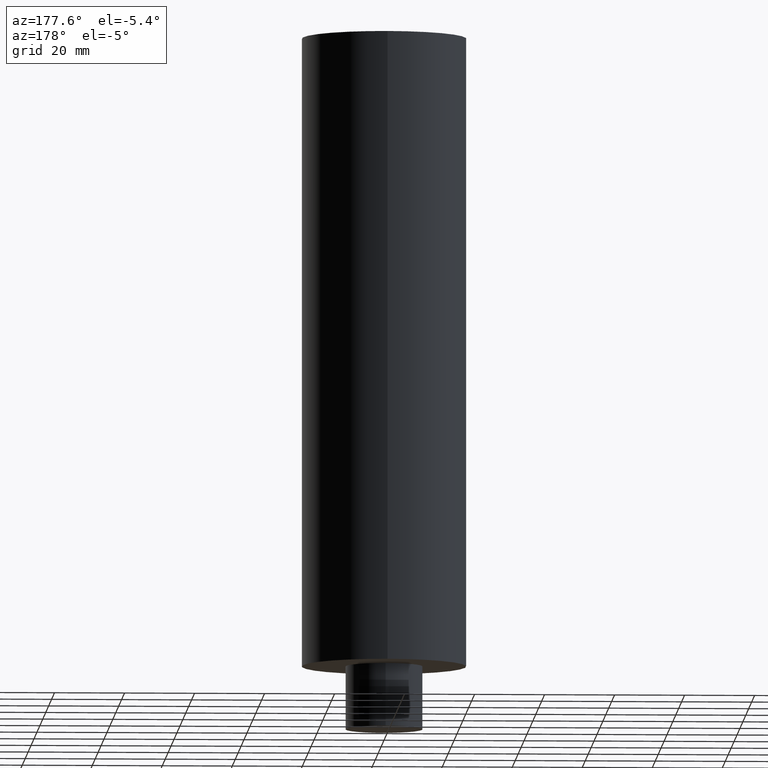
[diagram: clean part render]
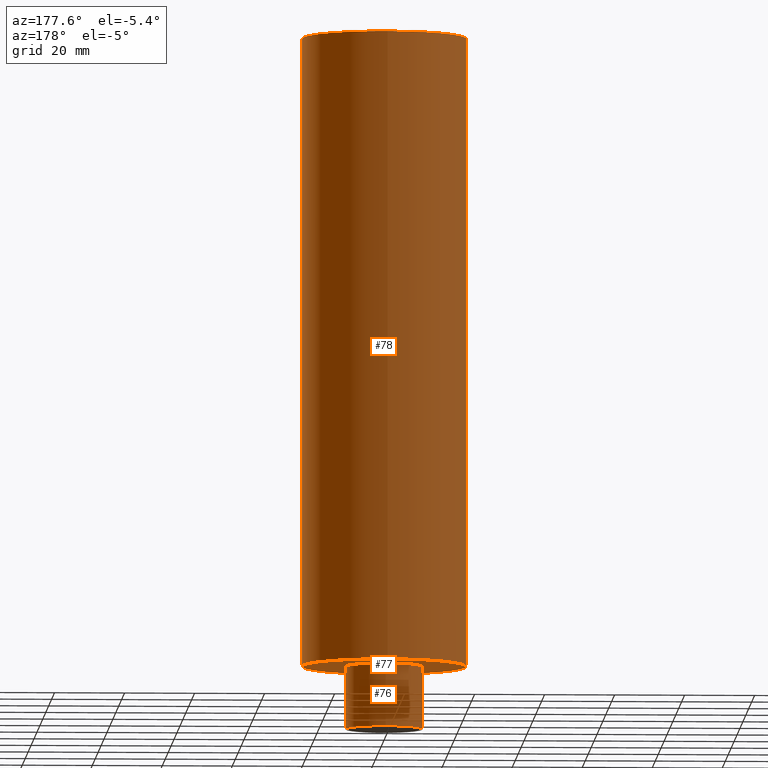
[diagram: same view with one multi-face feature highlighted, each face labeled with its STEP entity id]
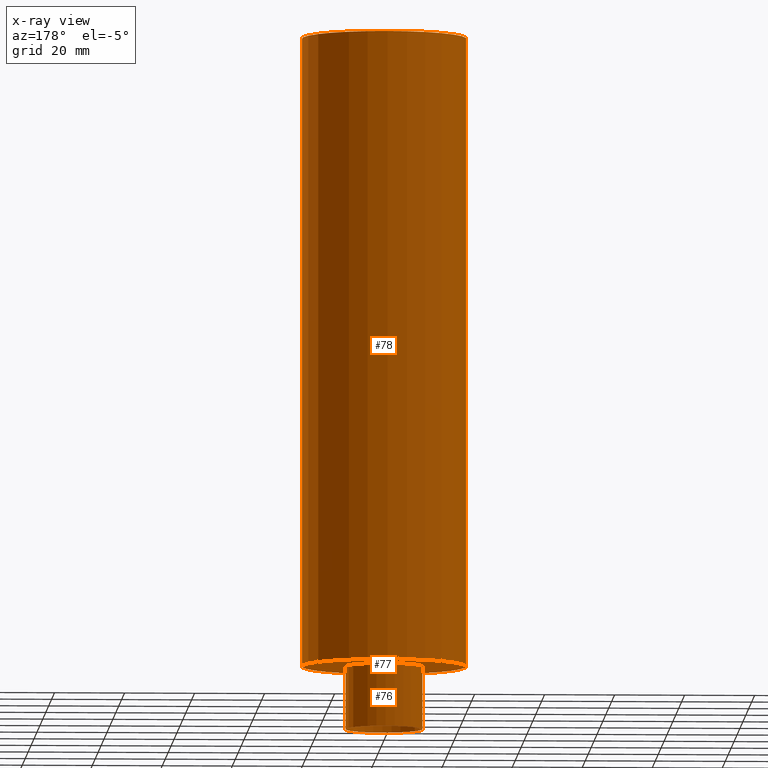
[diagram: x-ray of the same camera — body ghosted, the whole feature saturated]
A machine part, auxiliary view. The highlighted faces form ONE feature: a stepped (counterbored) hole: 2 coaxial cylindrical walls of radii 11 -> 23.5 mm joined by 1 annular planar shoulder face(s). The faces share edges in the B-rep.
The next image is the same camera in x-ray: the body ghosted and the whole hole feature saturated, so the bore chain is visible through the body.
Their STEP definitions:
[1] entity #78 (Cylinder):
#78=ADVANCED_FACE('',(#89,#90),#91,.T.);
#89=FACE_BOUND('',#102,.T.);
#90=FACE_BOUND('',#103,.T.);
#91=CYLINDRICAL_SURFACE('',#104,23.5);
#102=EDGE_LOOP('',(#121));
#103=EDGE_LOOP('',(#122));
#104=AXIS2_PLACEMENT_3D('',#123,#124,#125);
#121=ORIENTED_EDGE('',*,*,#133,.F.);
#122=ORIENTED_EDGE('',*,*,#132,.T.);
#123=CARTESIAN_POINT('',(5.51091059616309E-015,1.10218211923262E-014,-90.0));
#124=DIRECTION('',(6.12323399573677E-017,1.22464679914735E-016,-1.0));
#125=DIRECTION('',(-1.23259516440783E-032,1.0,1.22464679914735E-016));
#132=EDGE_CURVE('',#138,#138,#139,.T.);
#133=EDGE_CURVE('',#140,#140,#141,.T.);
#138=VERTEX_POINT('',#146);
#139=CIRCLE('',#147,23.5);
#140=VERTEX_POINT('',#148);
#141=CIRCLE('',#149,23.5);
#146=CARTESIAN_POINT('',(1.10218211923262E-014,23.5,-180.0));
#147=AXIS2_PLACEMENT_3D('',#156,#157,#158);
#148=CARTESIAN_POINT('',(1.45066791037618E-030,23.5,-2.55437894524077E-014));
#149=AXIS2_PLACEMENT_3D('',#159,#160,#161);
#156=CARTESIAN_POINT('',(1.10218211923262E-014,2.20436423846524E-014,-180.0));
#157=DIRECTION('',(-6.12323399573677E-017,-1.22464679914735E-016,1.0));
#158=DIRECTION('',(-1.23259516440783E-032,1.0,1.22464679914735E-016));
#159=CARTESIAN_POINT('',(1.74032777401202E-030,3.48065554802404E-030,-2.8421709430404E-014));
#160=DIRECTION('',(-6.12323399573677E-017,-1.22464679914735E-016,1.0));
#161=DIRECTION('',(-1.23259516440783E-032,1.0,1.22464679914735E-016));
[2] entity #76 (Cylinder):
#76=ADVANCED_FACE('',(#83,#84),#85,.T.);
#83=FACE_BOUND('',#96,.T.);
#84=FACE_BOUND('',#97,.T.);
#85=CYLINDRICAL_SURFACE('',#98,11.0);
#96=EDGE_LOOP('',(#111));
#97=EDGE_LOOP('',(#112));
#98=AXIS2_PLACEMENT_3D('',#113,#114,#115);
#111=ORIENTED_EDGE('',*,*,#131,.F.);
#112=ORIENTED_EDGE('',*,*,#130,.T.);
#113=CARTESIAN_POINT('',(1.15729122519425E-014,2.3145824503885E-014,-189.0));
#114=DIRECTION('',(6.12323399573677E-017,1.22464679914735E-016,-1.0));
#115=DIRECTION('',(-1.23259516440783E-032,1.0,1.22464679914735E-016));
#130=EDGE_CURVE('',#134,#134,#135,.T.);
#131=EDGE_CURVE('',#136,#136,#137,.T.);
#134=VERTEX_POINT('',#142);
#135=CIRCLE('',#143,11.0);
#136=VERTEX_POINT('',#144);
#137=CIRCLE('',#145,11.0);
#142=CARTESIAN_POINT('',(1.21240033115588E-014,11.0,-198.0));
#143=AXIS2_PLACEMENT_3D('',#150,#151,#152);
#144=CARTESIAN_POINT('',(1.10218211923262E-014,11.0,-180.0));
#145=AXIS2_PLACEMENT_3D('',#153,#154,#155);
#150=CARTESIAN_POINT('',(1.21240033115588E-014,2.42480066231176E-014,-198.0));
#151=DIRECTION('',(-6.12323399573677E-017,-1.22464679914735E-016,1.0));
#152=DIRECTION('',(-1.23259516440783E-032,1.0,1.22464679914735E-016));
#153=CARTESIAN_POINT('',(1.10218211923262E-014,2.20436423846524E-014,-180.0));
#154=DIRECTION('',(-6.12323399573677E-017,-1.22464679914735E-016,1.0));
#155=DIRECTION('',(-1.23259516440783E-032,1.0,1.22464679914735E-016));
[3] entity #77 (Plane):
#77=ADVANCED_FACE('',(#86,#87),#88,.T.);
#86=FACE_OUTER_BOUND('',#99,.T.);
#87=FACE_BOUND('',#100,.T.);
#88=PLANE('',#101);
#99=EDGE_LOOP('',(#116));
#100=EDGE_LOOP('',(#117));
#101=AXIS2_PLACEMENT_3D('',#118,#119,#120);
#116=ORIENTED_EDGE('',*,*,#132,.F.);
#117=ORIENTED_EDGE('',*,*,#131,.T.);
#118=CARTESIAN_POINT('',(1.10218211923262E-014,17.25,-180.0));
#119=DIRECTION('',(6.12323399573677E-017,1.22464679914735E-016,-1.0));
#120=DIRECTION('',(1.23259516440783E-032,-1.0,-1.22464679914735E-016));
#131=EDGE_CURVE('',#136,#136,#137,.T.);
#132=EDGE_CURVE('',#138,#138,#139,.T.);
#136=VERTEX_POINT('',#144);
#137=CIRCLE('',#145,11.0);
#138=VERTEX_POINT('',#146);
#139=CIRCLE('',#147,23.5);
#144=CARTESIAN_POINT('',(1.10218211923262E-014,11.0,-180.0));
#145=AXIS2_PLACEMENT_3D('',#153,#154,#155);
#146=CARTESIAN_POINT('',(1.10218211923262E-014,23.5,-180.0));
#147=AXIS2_PLACEMENT_3D('',#156,#157,#158);
#153=CARTESIAN_POINT('',(1.10218211923262E-014,2.20436423846524E-014,-180.0));
#154=DIRECTION('',(-6.12323399573677E-017,-1.22464679914735E-016,1.0));
#155=DIRECTION('',(-1.23259516440783E-032,1.0,1.22464679914735E-016));
#156=CARTESIAN_POINT('',(1.10218211923262E-014,2.20436423846524E-014,-180.0));
#157=DIRECTION('',(-6.12323399573677E-017,-1.22464679914735E-016,1.0));
#158=DIRECTION('',(-1.23259516440783E-032,1.0,1.22464679914735E-016));